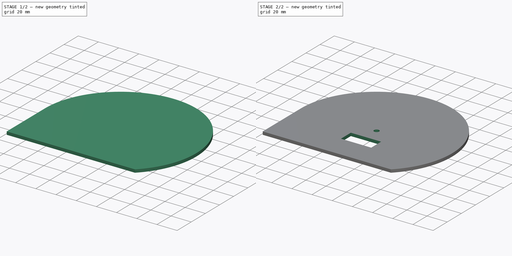
[diagram: build sequence overview — one tinted view per stage of 2, left to right]
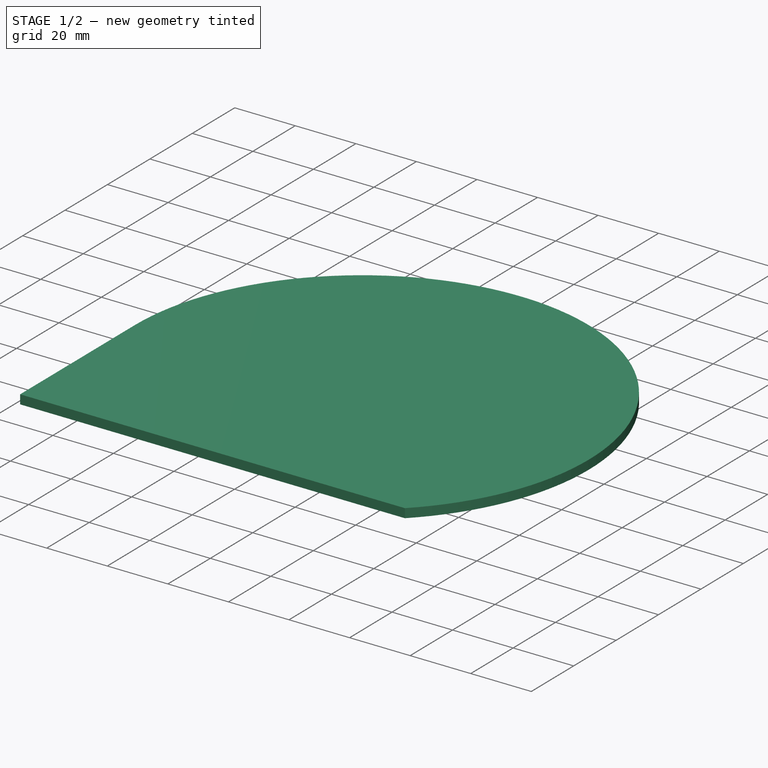
[diagram: stage 1 of 2 — iso view after this stage's code; geometry added in this stage tinted green]
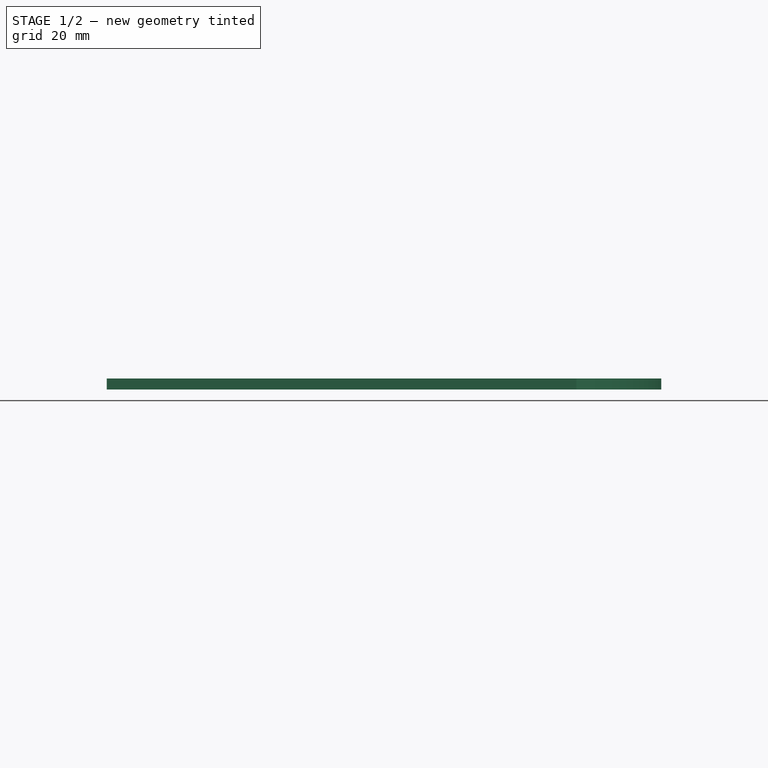
[diagram: stage 1 of 2 — front view after this stage's code; geometry added in this stage tinted green]
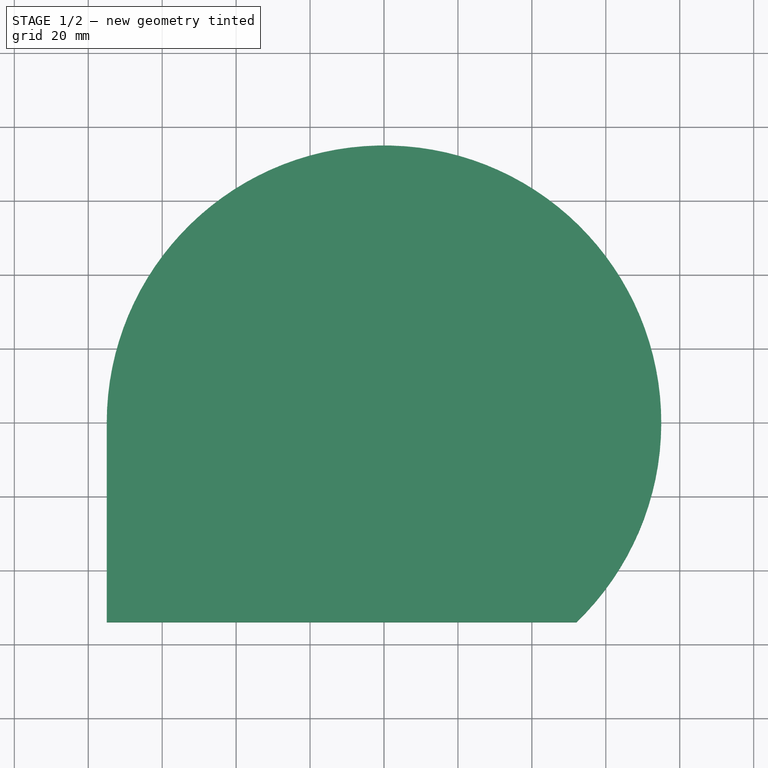
[diagram: stage 1 of 2 — top view after this stage's code; geometry added in this stage tinted green]
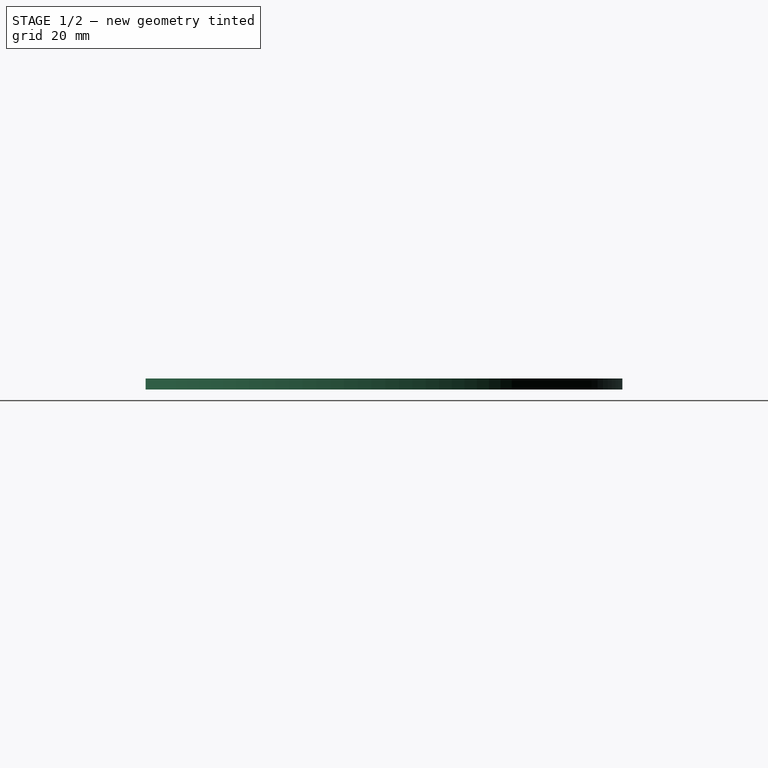
[diagram: stage 1 of 2 — right view after this stage's code; geometry added in this stage tinted green]
FCSTD DOCUMENT  (FreeCAD 1.0RUnknown)
Label: shell.20250520-173400
License: All rights reserved
LicenseURL: https://en.wikipedia.org/wiki/All_rights_reserved
objects: Part::Feature×2, Sketcher::SketchObject×1, PartDesign::Pad×1, PartDesign::Pocket×1, PartDesign::Body×1
note: 11 computed .brp shape members not serialized (recipe doc carries the construction recipe); baked Part::Feature solids carry a one-line shape summary decoded from their .brp

FEATURE [Sketcher::SketchObject] Sketch
  ArcFitTolerance = 1e-06
  AttachmentSupport = -> [XY_Plane]
  FullyConstrained = true
  MakeInternals = false
  MapMode = 5
  sketch-geometry (11):
    g0: LineSegment StartX=52.0481 StartY=0 StartZ=0 EndX=-75 EndY=0 EndZ=0
    g1: LineSegment StartX=-75 StartY=0 StartZ=0 EndX=-75 EndY=-54 EndZ=0
    g2: LineSegment StartX=-75 StartY=-54 StartZ=0 EndX=52.0481 EndY=-54 EndZ=0
    g3: LineSegment StartX=52.0481 StartY=-54 StartZ=0 EndX=52.0481 EndY=0 EndZ=0
    g4: LineSegment StartX=-15 StartY=-15 StartZ=0 EndX=-15 EndY=-29 EndZ=0
    g5: LineSegment StartX=-15 StartY=-29 StartZ=0 EndX=15 EndY=-29 EndZ=0
    g6: LineSegment StartX=15 StartY=-29 StartZ=0 EndX=15 EndY=-15 EndZ=0
    g7: LineSegment StartX=15 StartY=-15 StartZ=0 EndX=-15 EndY=-15 EndZ=0
    g8: GeomPoint [constr] X=0 Y=-22 Z=0
    g9: ArcOfCircle CenterX=0 CenterY=0 CenterZ=0 NormalX=0 NormalY=0 NormalZ=1 AngleXU=0 Radius=75 StartAngle=5.47938 EndAngle=9.42478
    g10: Circle CenterX=0 CenterY=0 CenterZ=0 NormalX=0 NormalY=0 NormalZ=1 AngleXU=0 Radius=2.5
  constraints (31):
    c: Coincident(g0,g1)
    c: Coincident(g1,g2)
    c: Coincident(g2,g3)
    c: Coincident(g3,g0)
    c: Horizontal(g0)
    c: Horizontal(g2)
    c: Vertical(g1)
    c: Vertical(g3)
    c: DistanceY(g0,g-1) = 0
    c: Coincident(g4,g5)
    c: Coincident(g5,g6)
    c: Coincident(g6,g7)
    c: Coincident(g7,g4)
    c: Vertical(g4)
    c: Vertical(g6)
    c: Horizontal(g5)
    c: Horizontal(g7)
    c: Symmetric(g6,g4,g8)
    c: DistanceX(g5,g5) = 30
    c: DistanceY(g6,g6) = 14
    c: DistanceY(g6,g-1) = 15
    c: DistanceX(g8,g-1) = 0
    c: DistanceY(g2,g5) = 25
    c: DistanceX(g0,g-1) = 75
    c: Distance(g2,g-1) = 75
    c: Radius(g9) = 75
    c: Coincident(g9,g-1)
    c: DistanceY(g9,g0) = 0
    c: DistanceX(g2,g9) = 0
    c: Coincident(g10,g9)
    c: Diameter(g10) = 5
FEATURE [PartDesign::Pad] Pad
  Direction = (0,0,1)
  Length = 3
  Length2 = 10
  Profile = -> Sketch [Edge3,Edge2,Edge4]
  ReferenceAxis = -> Sketch [N_Axis]
  Refine = true
  Reversed = true
  Suppressed = false
  Type = 0
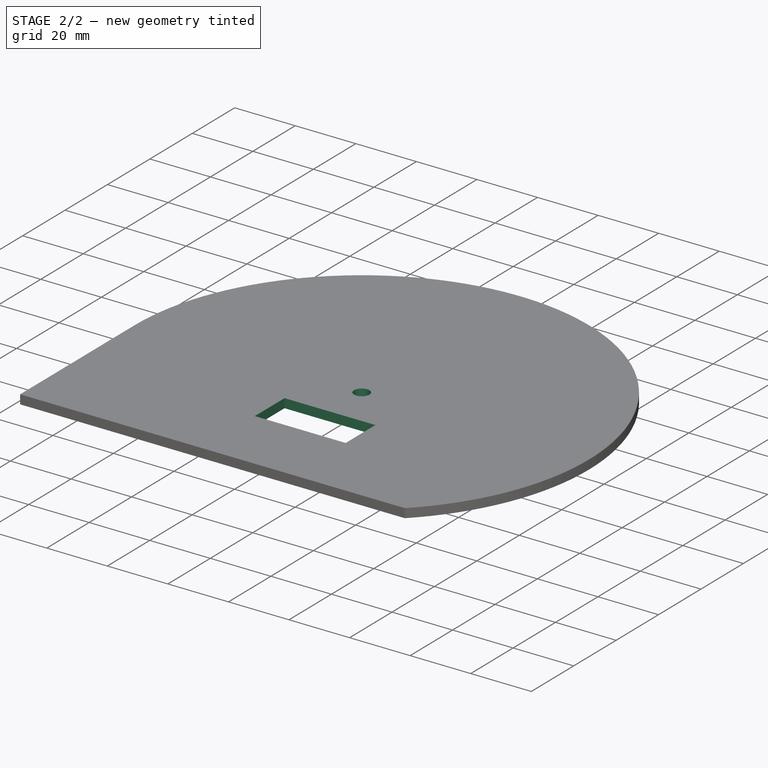
[diagram: stage 2 of 2 — iso view after this stage's code; geometry added in this stage tinted green]
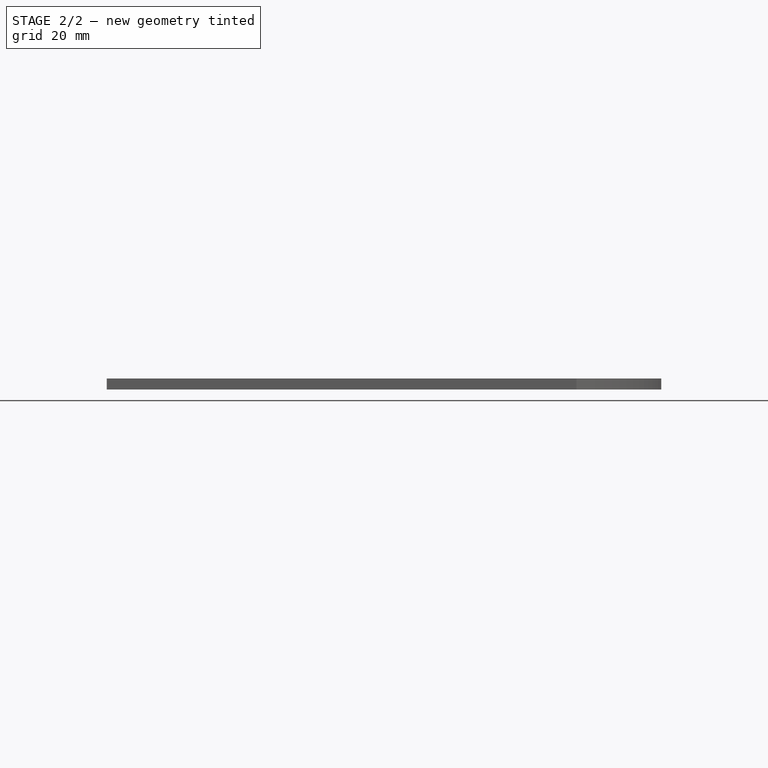
[diagram: stage 2 of 2 — front view after this stage's code; geometry added in this stage tinted green]
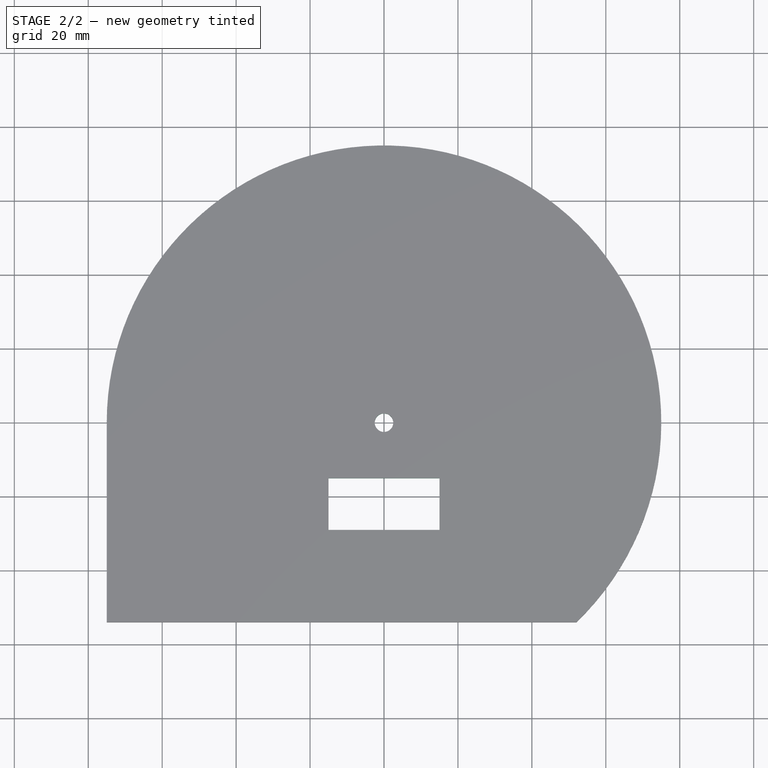
[diagram: stage 2 of 2 — top view after this stage's code; geometry added in this stage tinted green]
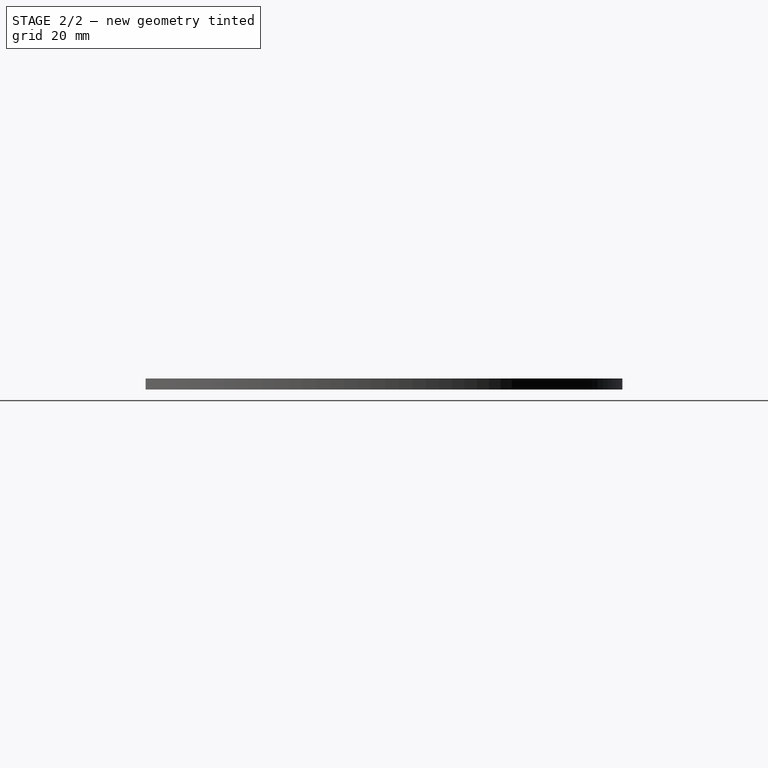
[diagram: stage 2 of 2 — right view after this stage's code; geometry added in this stage tinted green]
FEATURE [PartDesign::Pocket] Pocket
  BaseFeature = -> Pad
  Direction = (0,0,-1)
  Length = 5
  Length2 = 5
  Profile = -> Sketch [Edge9,Edge8,Edge7,Edge6,Edge10]
  ReferenceAxis = -> Sketch [N_Axis]
  Refine = true
  Suppressed = false
  Type = 1
FEATURE [PartDesign::Body] Body  label="Corps"
  AllowCompound = false
  Group = -> [Sketch,Pad,Pocket]
  Origin = -> Origin
  Tip = -> Pocket
FEATURE [Part::Feature] Part__Feature  label="ARDUINO-UNO"
  Placement = pos=(-41,-24,-22) rot=(-0.57735,0.57735,-0.57735;2.0944rad)
  shape: bbox 75 x 53.5 x 14.9 mm, 1146 faces (baked)
FEATURE [Part::Feature] Part__Feature001  label="SG90-SERVO"
  Placement = pos=(0,19,-4.2e-15) rot=(1,0,0;1.5708rad)
  shape: bbox 32.25 x 12.5 x 29.75 mm, 92 faces (baked)
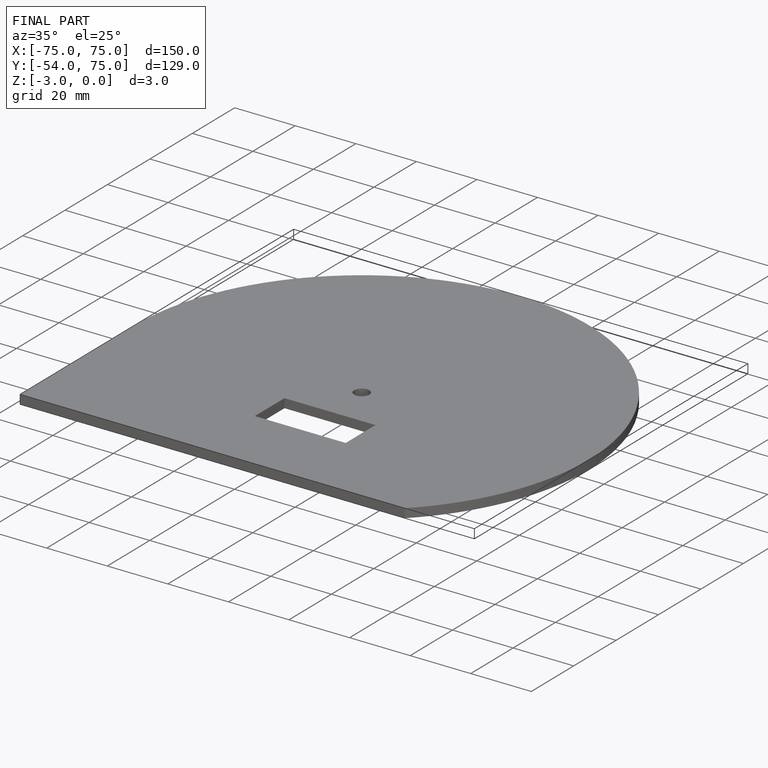
[diagram: finished part — iso view with bounding-box wireframe]
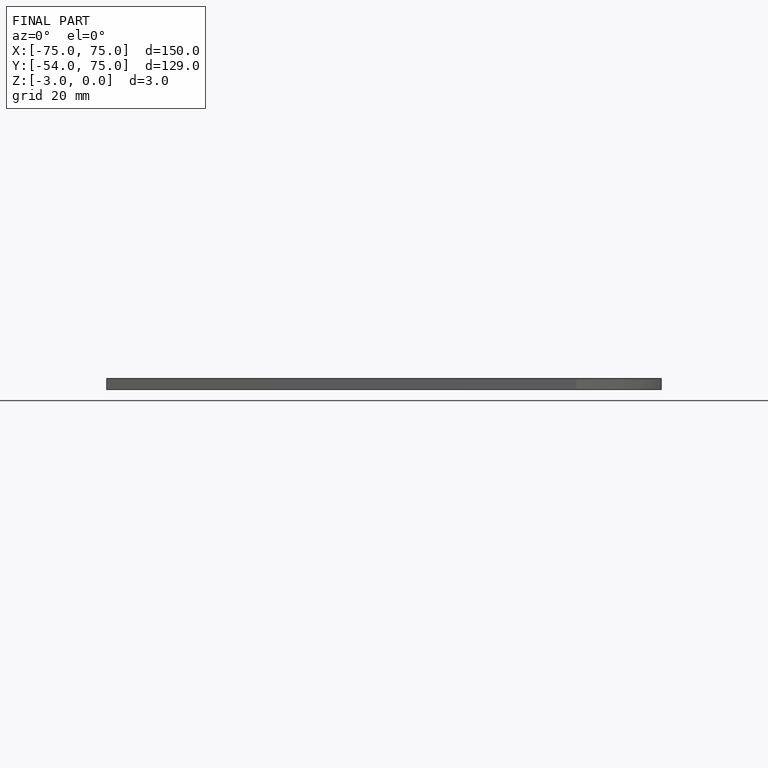
[diagram: finished part — front view with bounding-box wireframe]
